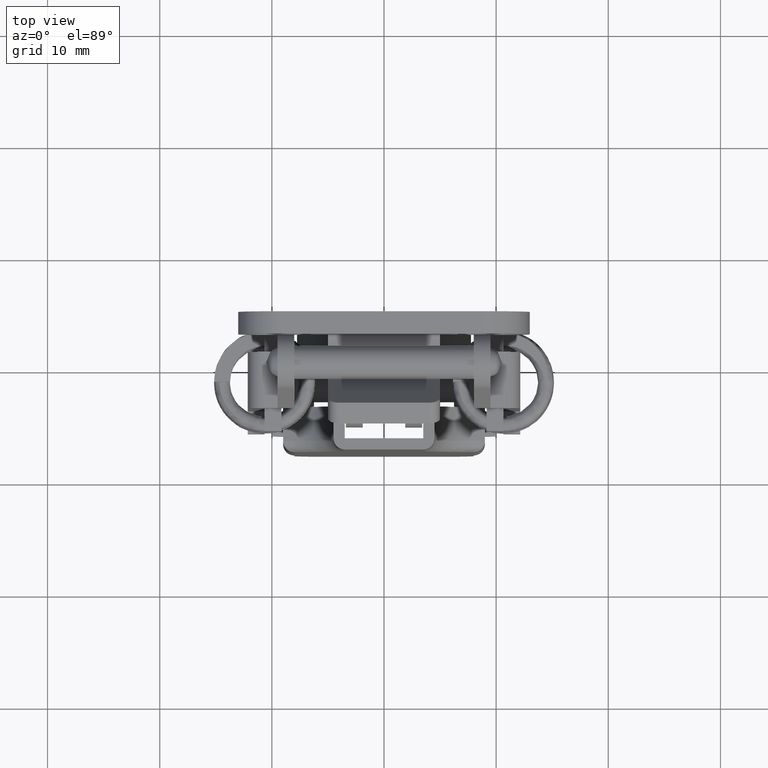
[diagram: clean part render]
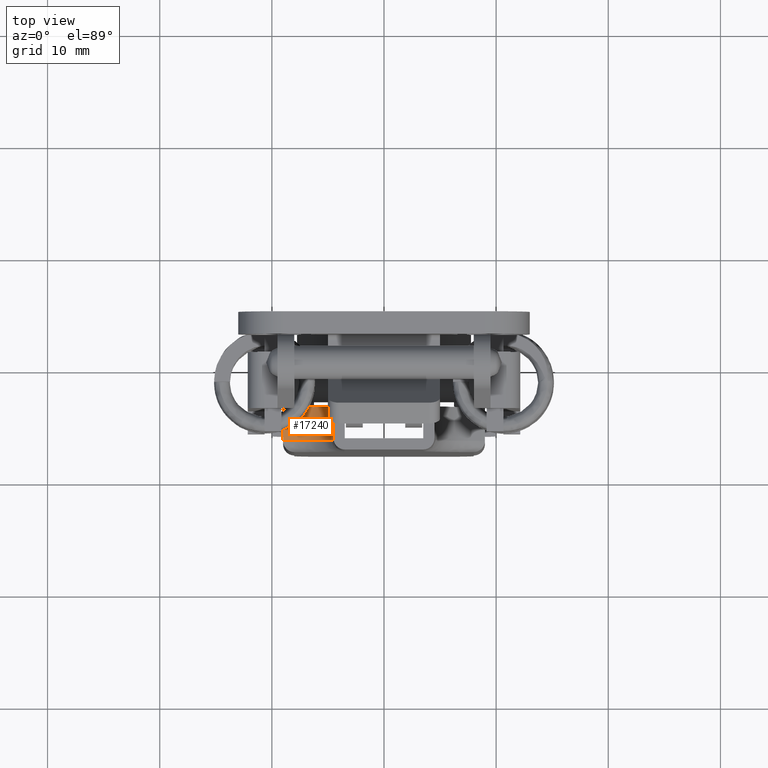
[diagram: same view with one face highlighted and labeled with its STEP entity id]
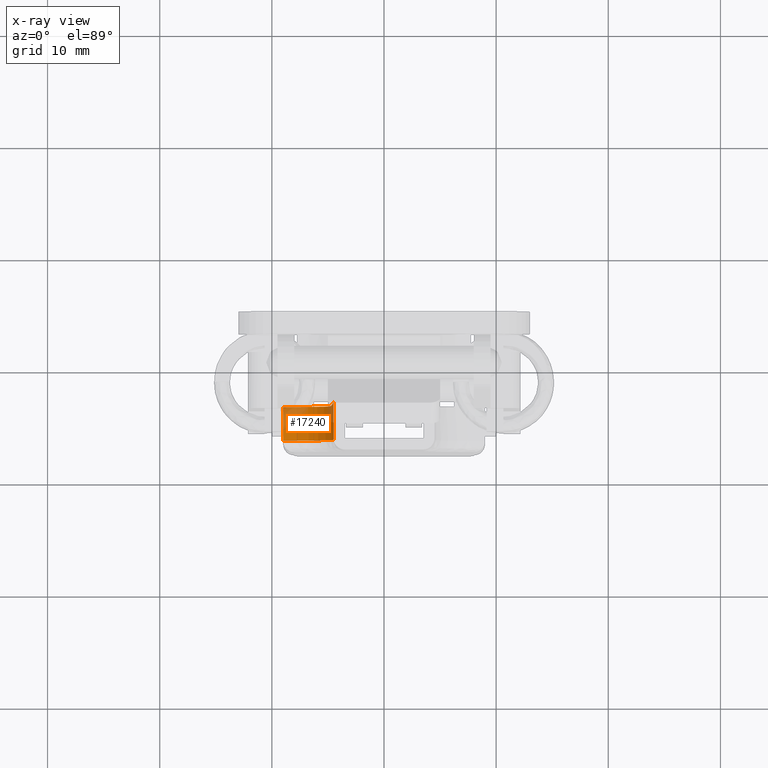
[diagram: x-ray of the same camera — body ghosted, the highlighted face saturated]
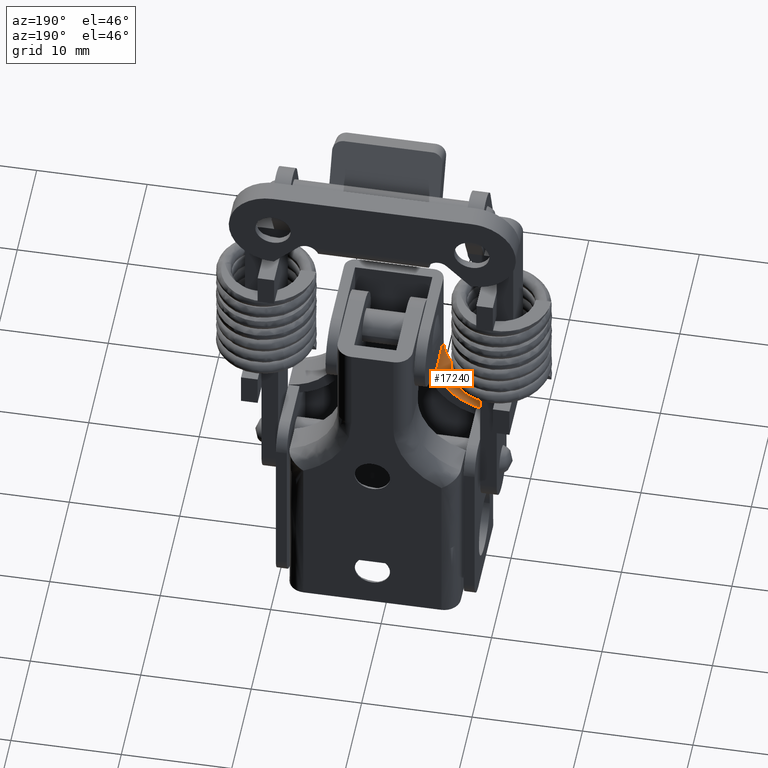
[diagram: same view with one face highlighted and labeled with its STEP entity id]
A machine part, top view. The second image highlights one B-rep face of the part: STEP entity #17240.
The next image is the same camera in x-ray: the body ghosted, the highlighted face saturated — about 27% of this face is hidden behind the body in this view.
A second angle (auxiliary view) of the same face is appended — the face is thin or edge-on in the first view.
In plain terms, the highlighted face is a freeform B-spline surface patch.
Its self-contained STEP definition (entity closure, byte-faithful):
#15255=CARTESIAN_POINT('',(-6.500000000000170,9.0,-27.974937185533101));
#15256=VERTEX_POINT('',#15255);
#15340=CARTESIAN_POINT('',(-6.500000000000000,4.500000000000000,-23.0));
#15341=VERTEX_POINT('',#15340);
#15357=CARTESIAN_POINT('',(-6.500000000000170,9.0,-27.974937185533101));
#15358=CARTESIAN_POINT('',(-6.500000000000002,4.500000000000001,-27.522670168666455));
#15359=CARTESIAN_POINT('',(-6.500000000000000,4.500000000000000,-23.0));
#15367=(BOUNDED_CURVE()B_SPLINE_CURVE(2,(#15357,#15358,#15359),.UNSPECIFIED.,.F.,.U.)CURVE()GEOMETRIC_REPRESENTATION_ITEM()QUASI_UNIFORM_CURVE()RATIONAL_B_SPLINE_CURVE((1.0,0.741619848709566,1.0))REPRESENTATION_ITEM(''));
#15368=EDGE_CURVE('',#15256,#15341,#15367,.T.);
#15765=CARTESIAN_POINT('',(-2.736067977499970,4.500000000000000,-23.0));
#15766=VERTEX_POINT('',#15765);
#15825=CARTESIAN_POINT('',(-3.500000000000085,4.917424305044050,-25.0));
#15826=VERTEX_POINT('',#15825);
#15832=CARTESIAN_POINT('',(-2.736067977499970,4.500000000000000,-23.0));
#15833=CARTESIAN_POINT('',(-2.861932134603707,4.500000000000001,-23.140720405607340));
#15834=CARTESIAN_POINT('',(-2.972565151831013,4.505915263066368,-23.290921491517189));
#15835=CARTESIAN_POINT('',(-3.116571494546620,4.527481256034179,-23.529562800226358));
#15836=CARTESIAN_POINT('',(-3.160893404109720,4.536789880188747,-23.611347847666970));
#15837=CARTESIAN_POINT('',(-3.221766518511326,4.554492482412162,-23.737397867194669));
#15838=CARTESIAN_POINT('',(-3.241160597179756,4.561037415350894,-23.780082036238809));
#15839=CARTESIAN_POINT('',(-3.277644092236363,4.575306170232721,-23.865603881043938));
#15840=CARTESIAN_POINT('',(-3.294783061909272,4.583040065556314,-23.908532231017020));
#15841=CARTESIAN_POINT('',(-3.375126138534975,4.624800769721444,-24.123941925826600));
#15842=CARTESIAN_POINT('',(-3.422384416446315,4.668074039029667,-24.298702561527922));
#15843=CARTESIAN_POINT('',(-3.469429448254508,4.749844278698181,-24.563507221693651));
#15844=CARTESIAN_POINT('',(-3.481118697868328,4.780085387115125,-24.652618978625359));
#15845=CARTESIAN_POINT('',(-3.496353970388615,4.845176247553512,-24.827938531542269));
#15846=CARTESIAN_POINT('',(-3.500000000000085,4.880112993663402,-24.914509045659809));
#15847=CARTESIAN_POINT('',(-3.500000000000085,4.917424305044050,-25.0));
#15848=B_SPLINE_CURVE_WITH_KNOTS('',3,(#15832,#15833,#15834,#15835,#15836,#15837,#15838,#15839,#15840,#15841,#15842,#15843,#15844,#15845,#15846,#15847),.UNSPECIFIED.,.F.,.U.,(4,2,2,2,2,2,2,4),(0.0,0.249999999999998,0.374999999999999,0.437499999999998,0.499999999999996,0.749999999999998,0.874999999999999,1.0),.UNSPECIFIED.);
#15849=EDGE_CURVE('',#15766,#15826,#15848,.T.);
#15977=CARTESIAN_POINT('',(-3.500000000000085,9.0,-27.974937185533101));
#15978=VERTEX_POINT('',#15977);
#15984=CARTESIAN_POINT('',(-3.500000000000060,9.0,-27.974937185533101));
#15985=CARTESIAN_POINT('',(-3.500000000000060,6.088065871085364,-27.682276794022787));
#15986=CARTESIAN_POINT('',(-3.500000000000085,4.917424305044050,-25.0));
#15994=(BOUNDED_CURVE()B_SPLINE_CURVE(2,(#15984,#15985,#15986),.UNSPECIFIED.,.F.,.U.)CURVE()GEOMETRIC_REPRESENTATION_ITEM()QUASI_UNIFORM_CURVE()RATIONAL_B_SPLINE_CURVE((1.0,0.863031427220863,1.0))REPRESENTATION_ITEM(''));
#15995=EDGE_CURVE('',#15978,#15826,#15994,.T.);
#17211=CARTESIAN_POINT('',(-2.641969676937465,4.503817805389042,-22.804645250243510));
#17212=CARTESIAN_POINT('',(-6.596450758076737,4.503817805389042,-22.804645250243510));
#17213=CARTESIAN_POINT('',(-2.641969676937466,4.307371271369697,-27.828749740581696));
#17214=CARTESIAN_POINT('',(-6.596450758076738,4.307371271369697,-27.828749740581696));
#17215=CARTESIAN_POINT('',(-2.641969676937466,9.332492555984851,-27.997193337884731));
#17216=CARTESIAN_POINT('',(-6.596450758076740,9.332492555984851,-27.997193337884731));
#17224=(BOUNDED_SURFACE()B_SPLINE_SURFACE(1,2,((#17211,#17213,#17215),(#17212,#17214,#17216)),.UNSPECIFIED.,.F.,.F.,.U.)B_SPLINE_SURFACE_WITH_KNOTS((2,2),(3,3),(0.0,3.954481081139274),(0.0,8.316921929897244),.UNSPECIFIED.)GEOMETRIC_REPRESENTATION_ITEM()RATIONAL_B_SPLINE_SURFACE(((1.0,0.703393985365514,0.995071841920883),(1.0,0.703393985365514,0.995071841920883)))REPRESENTATION_ITEM('')SURFACE());
#17225=CARTESIAN_POINT('',(-3.500000000000085,9.0,-27.974937185533101));
#17226=CARTESIAN_POINT('',(-6.500000000000170,9.0,-27.974937185533101));
#17227=QUASI_UNIFORM_CURVE('',1,(#17225,#17226),.UNSPECIFIED.,.F.,.U.);
#17228=EDGE_CURVE('',#15978,#15256,#17227,.T.);
#17229=ORIENTED_EDGE('',*,*,#17228,.T.);
#17230=ORIENTED_EDGE('',*,*,#15368,.T.);
#17231=CARTESIAN_POINT('',(-2.736067977499970,4.500000000000000,-23.0));
#17232=CARTESIAN_POINT('',(-6.500000000000000,4.500000000000000,-23.0));
#17233=QUASI_UNIFORM_CURVE('',1,(#17231,#17232),.UNSPECIFIED.,.F.,.U.);
#17234=EDGE_CURVE('',#15766,#15341,#17233,.T.);
#17235=ORIENTED_EDGE('',*,*,#17234,.F.);
#17236=ORIENTED_EDGE('',*,*,#15849,.T.);
#17237=ORIENTED_EDGE('',*,*,#15995,.F.);
#17238=EDGE_LOOP('',(#17229,#17230,#17235,#17236,#17237));
#17239=FACE_OUTER_BOUND('',#17238,.T.);
#17240=ADVANCED_FACE('',(#17239),#17224,.F.);